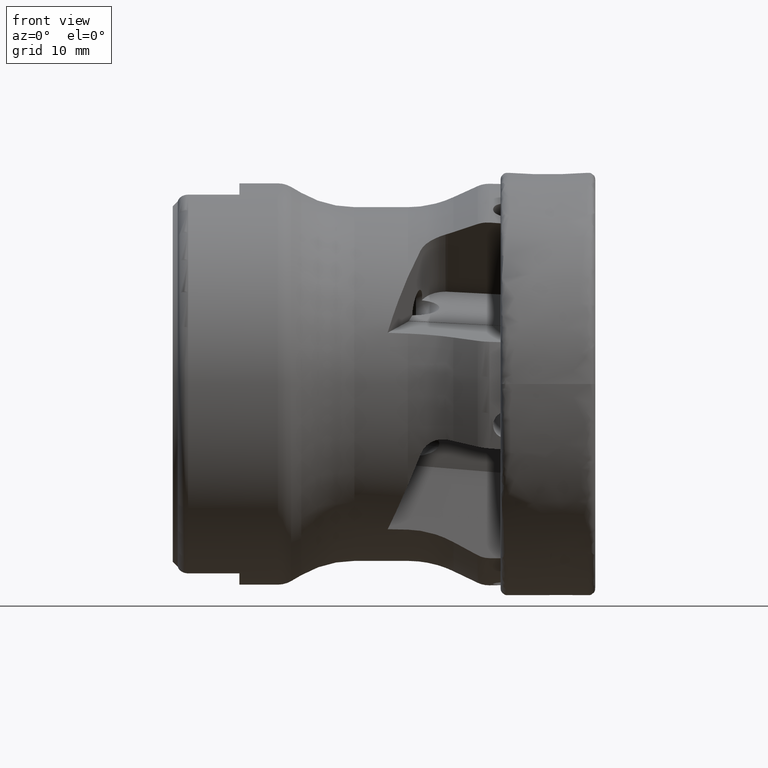
[diagram: clean part render]
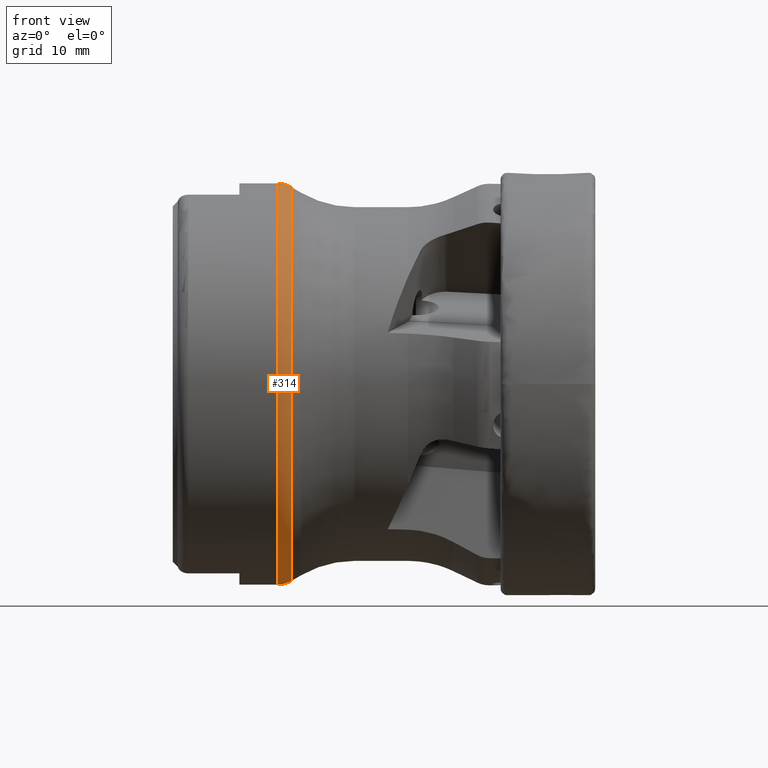
[diagram: same view with one face highlighted and labeled with its STEP entity id]
A machine part, front view. The second image highlights one B-rep face of the part: STEP entity #314.
In plain terms, the highlighted toroidal blend (fillet) surface has major radius 16.5 mm and minor (blend) radius 2.5 mm.
Its self-contained STEP definition (entity closure, byte-faithful):
#314 = ADVANCED_FACE ( 'NONE', ( #910 ), #7915, .T. ) ;
#502 = DIRECTION ( 'NONE',  ( 1.000000000000000000, -0.0000000000000000000, -0.0000000000000000000 ) ) ;
#589 = EDGE_LOOP ( 'NONE', ( #3633, #1559, #1081, #1820 ) ) ;
#872 = DIRECTION ( 'NONE',  ( 1.000000000000000000, -0.0000000000000000000, -0.0000000000000000000 ) ) ;
#910 = FACE_OUTER_BOUND ( 'NONE', #589, .T. ) ;
#1046 = EDGE_CURVE ( 'NONE', #5955, #4469, #5389, .T. ) ;
#1081 = ORIENTED_EDGE ( 'NONE', *, *, #1046, .T. ) ;
#1185 = AXIS2_PLACEMENT_3D ( 'NONE', #4572, #502, #5250 ) ;
#1331 = VERTEX_POINT ( 'NONE', #8341 ) ;
#1559 = ORIENTED_EDGE ( 'NONE', *, *, #4152, .T. ) ;
#1820 = ORIENTED_EDGE ( 'NONE', *, *, #2004, .F. ) ;
#1866 = AXIS2_PLACEMENT_3D ( 'NONE', #7999, #3949, #8691 ) ;
#2004 = EDGE_CURVE ( 'NONE', #1331, #4469, #7389, .T. ) ;
#2280 = AXIS2_PLACEMENT_3D ( 'NONE', #4934, #872, #5623 ) ;
#2447 = DIRECTION ( 'NONE',  ( 1.000000000000000000, -0.0000000000000000000, -0.0000000000000000000 ) ) ;
#2730 = CARTESIAN_POINT ( 'NONE',  ( -29.34999999999999400, 0.0000000000000000000, 0.0000000000000000000 ) ) ;
#2817 = CARTESIAN_POINT ( 'NONE',  ( -29.34999999999999400, 0.0000000000000000000, -18.99999999999999600 ) ) ;
#3102 = CARTESIAN_POINT ( 'NONE',  ( -29.34999999999999400, 0.0000000000000000000, -16.49999999999999600 ) ) ;
#3131 = AXIS2_PLACEMENT_3D ( 'NONE', #2730, #2447, #6490 ) ;
#3371 = CIRCLE ( 'NONE', #1185, 18.99999999999999600 ) ;
#3633 = ORIENTED_EDGE ( 'NONE', *, *, #5330, .F. ) ;
#3686 = VERTEX_POINT ( 'NONE', #5742 ) ;
#3949 = DIRECTION ( 'NONE',  ( 0.0000000000000000000, 1.000000000000000000, -1.224646799147353200E-016 ) ) ;
#4152 = EDGE_CURVE ( 'NONE', #3686, #5955, #3371, .T. ) ;
#4469 = VERTEX_POINT ( 'NONE', #8321 ) ;
#4572 = CARTESIAN_POINT ( 'NONE',  ( -29.34999999999999400, 0.0000000000000000000, 0.0000000000000000000 ) ) ;
#4934 = CARTESIAN_POINT ( 'NONE',  ( -28.09405246323436600, 0.0000000000000000000, 0.0000000000000000000 ) ) ;
#5250 = DIRECTION ( 'NONE',  ( 0.0000000000000000000, 0.0000000000000000000, -1.000000000000000000 ) ) ;
#5330 = EDGE_CURVE ( 'NONE', #3686, #1331, #8237, .T. ) ;
#5389 = CIRCLE ( 'NONE', #5535, 2.499999999999998700 ) ;
#5535 = AXIS2_PLACEMENT_3D ( 'NONE', #3102, #5719, #5814 ) ;
#5623 = DIRECTION ( 'NONE',  ( 0.0000000000000000000, 0.0000000000000000000, -1.000000000000000000 ) ) ;
#5719 = DIRECTION ( 'NONE',  ( -0.0000000000000000000, -1.000000000000000000, -0.0000000000000000000 ) ) ;
#5742 = CARTESIAN_POINT ( 'NONE',  ( -29.34999999999999400, 2.326828918379970600E-015, 18.99999999999999600 ) ) ;
#5814 = DIRECTION ( 'NONE',  ( 0.0000000000000000000, 0.0000000000000000000, -1.000000000000000000 ) ) ;
#5955 = VERTEX_POINT ( 'NONE', #2817 ) ;
#6490 = DIRECTION ( 'NONE',  ( 0.0000000000000000000, 0.0000000000000000000, -1.000000000000000000 ) ) ;
#7389 = CIRCLE ( 'NONE', #2280, 18.66161878805961600 ) ;
#7915 = TOROIDAL_SURFACE ( 'NONE', #3131, 16.49999999999999600, 2.499999999999997800 ) ;
#7999 = CARTESIAN_POINT ( 'NONE',  ( -29.34999999999999400, 2.020667218593132700E-015, 16.49999999999999600 ) ) ;
#8237 = CIRCLE ( 'NONE', #1866, 2.499999999999998700 ) ;
#8321 = CARTESIAN_POINT ( 'NONE',  ( -28.09405246323436600, 0.0000000000000000000, -18.66161878805961600 ) ) ;
#8341 = CARTESIAN_POINT ( 'NONE',  ( -28.09405246323436600, 2.306109044975251200E-015, 18.66161878805961600 ) ) ;
#8691 = DIRECTION ( 'NONE',  ( 0.0000000000000000000, 1.224646799147352700E-016, 1.000000000000000000 ) ) ;